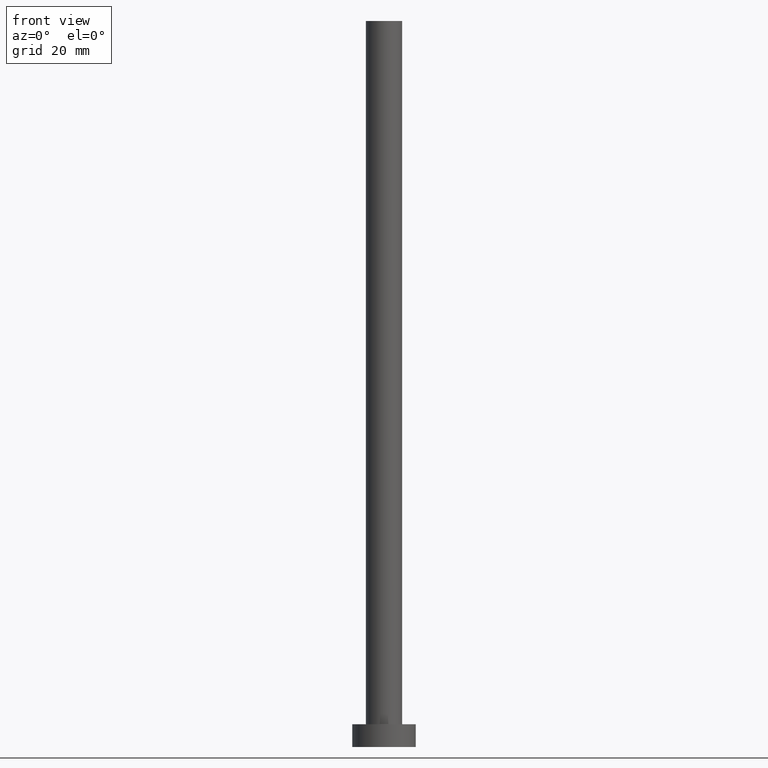
[diagram: clean part render]
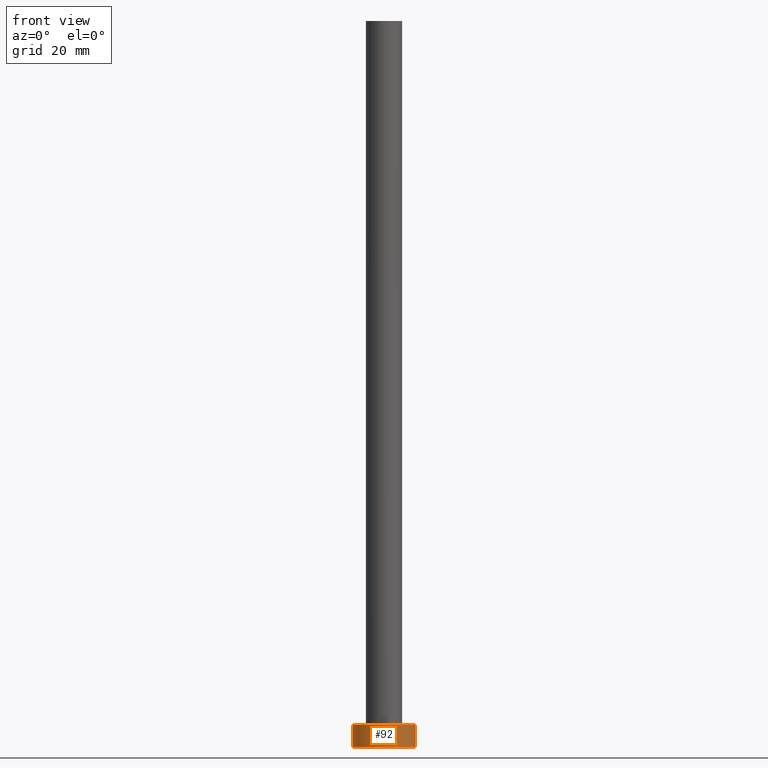
[diagram: same view with one face highlighted and labeled with its STEP entity id]
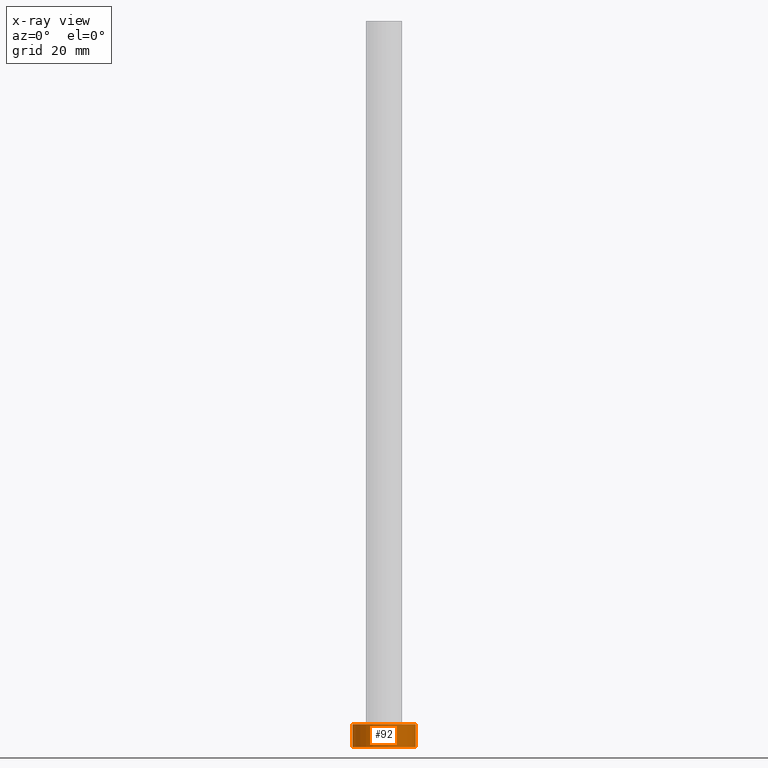
[diagram: x-ray of the same camera — body ghosted, the highlighted face saturated]
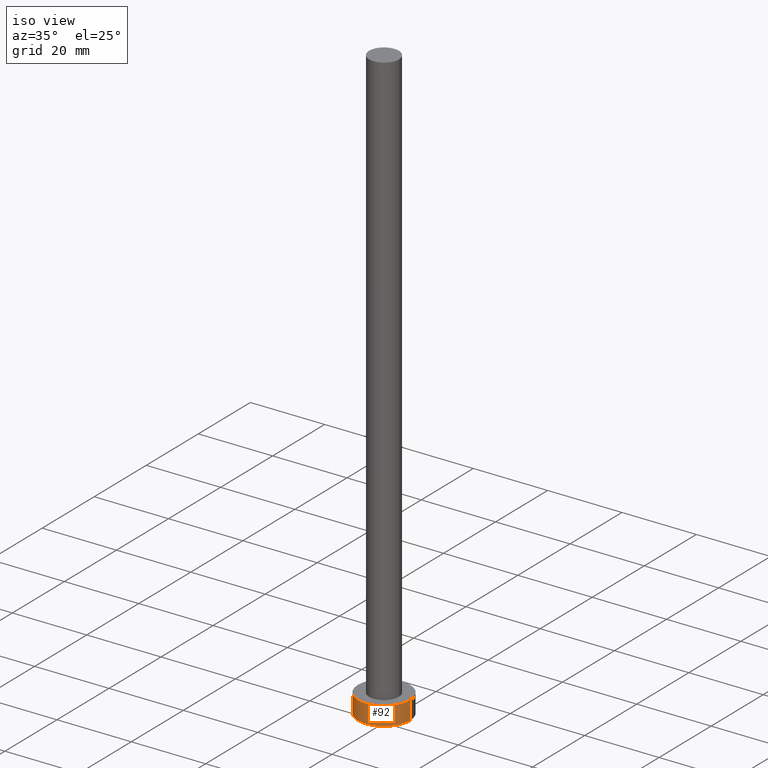
[diagram: same view with one face highlighted and labeled with its STEP entity id]
A machine part, front view. The second image highlights one B-rep face of the part: STEP entity #92.
The next image is the same camera in x-ray: the body ghosted, the highlighted face saturated — about 0% of this face is hidden behind the body in this view.
A second angle (iso view) of the same face is appended — the face is thin or edge-on in the first view.
In plain terms, the highlighted cylindrical surface (edge-blend (fillet) strip) has radius 7 mm, axis along (-0, -0, -1).
Its self-contained STEP definition (entity closure, byte-faithful):
#8 = DIRECTION ( 'NONE',  ( 0.000000000000000000, 0.000000000000000000, 1.000000000000000000 ) ) ;
#15 = CARTESIAN_POINT ( 'NONE',  ( -7.000000000000000000, 0.000000000000000000, 5.000000000000000000 ) ) ;
#26 = EDGE_LOOP ( 'NONE', ( #131, #127, #66, #67 ) ) ;
#31 = DIRECTION ( 'NONE',  ( -0.000000000000000000, -0.000000000000000000, -1.000000000000000000 ) ) ;
#35 = EDGE_CURVE ( 'NONE', #129, #162, #40, .T. ) ;
#40 = CIRCLE ( 'NONE', #198, 7.000000000000000000 ) ;
#52 = CYLINDRICAL_SURFACE ( 'NONE', #124, 7.000000000000000000 ) ;
#58 = CARTESIAN_POINT ( 'NONE',  ( 7.000000000000000000, 8.572527594031473190E-16, 0.000000000000000000 ) ) ;
#66 = ORIENTED_EDGE ( 'NONE', *, *, #105, .T. ) ;
#67 = ORIENTED_EDGE ( 'NONE', *, *, #35, .T. ) ;
#72 = LINE ( 'NONE', #208, #134 ) ;
#74 = DIRECTION ( 'NONE',  ( -1.000000000000000000, 0.000000000000000000, 0.000000000000000000 ) ) ;
#81 = CARTESIAN_POINT ( 'NONE',  ( -7.000000000000000000, 0.000000000000000000, 0.000000000000000000 ) ) ;
#92 = ADVANCED_FACE ( 'NONE', ( #151 ), #52, .T. ) ;
#100 = VECTOR ( 'NONE', #209, 1000.000000000000000 ) ;
#105 = EDGE_CURVE ( 'NONE', #109, #129, #246, .T. ) ;
#109 = VERTEX_POINT ( 'NONE', #15 ) ;
#117 = CARTESIAN_POINT ( 'NONE',  ( 0.000000000000000000, 0.000000000000000000, 5.000000000000000000 ) ) ;
#124 = AXIS2_PLACEMENT_3D ( 'NONE', #189, #135, #74 ) ;
#127 = ORIENTED_EDGE ( 'NONE', *, *, #214, .F. ) ;
#129 = VERTEX_POINT ( 'NONE', #81 ) ;
#131 = ORIENTED_EDGE ( 'NONE', *, *, #172, .F. ) ;
#132 = DIRECTION ( 'NONE',  ( 0.000000000000000000, 0.000000000000000000, 1.000000000000000000 ) ) ;
#134 = VECTOR ( 'NONE', #31, 1000.000000000000000 ) ;
#135 = DIRECTION ( 'NONE',  ( -0.000000000000000000, -0.000000000000000000, -1.000000000000000000 ) ) ;
#136 = CARTESIAN_POINT ( 'NONE',  ( -7.000000000000000000, 0.000000000000000000, 5.000000000000000000 ) ) ;
#141 = VERTEX_POINT ( 'NONE', #170 ) ;
#144 = AXIS2_PLACEMENT_3D ( 'NONE', #117, #132, #186 ) ;
#151 = FACE_OUTER_BOUND ( 'NONE', #26, .T. ) ;
#162 = VERTEX_POINT ( 'NONE', #58 ) ;
#170 = CARTESIAN_POINT ( 'NONE',  ( 7.000000000000000000, 8.572527594031473190E-16, 5.000000000000000000 ) ) ;
#172 = EDGE_CURVE ( 'NONE', #141, #162, #72, .T. ) ;
#186 = DIRECTION ( 'NONE',  ( 1.000000000000000000, 0.000000000000000000, 0.000000000000000000 ) ) ;
#189 = CARTESIAN_POINT ( 'NONE',  ( 0.000000000000000000, 0.000000000000000000, 5.000000000000000000 ) ) ;
#198 = AXIS2_PLACEMENT_3D ( 'NONE', #229, #8, #248 ) ;
#208 = CARTESIAN_POINT ( 'NONE',  ( 7.000000000000000000, 8.572527594031473190E-16, 5.000000000000000000 ) ) ;
#209 = DIRECTION ( 'NONE',  ( -0.000000000000000000, -0.000000000000000000, -1.000000000000000000 ) ) ;
#214 = EDGE_CURVE ( 'NONE', #109, #141, #252, .T. ) ;
#229 = CARTESIAN_POINT ( 'NONE',  ( 0.000000000000000000, 0.000000000000000000, 0.000000000000000000 ) ) ;
#246 = LINE ( 'NONE', #136, #100 ) ;
#248 = DIRECTION ( 'NONE',  ( 1.000000000000000000, 0.000000000000000000, 0.000000000000000000 ) ) ;
#252 = CIRCLE ( 'NONE', #144, 7.000000000000000000 ) ;